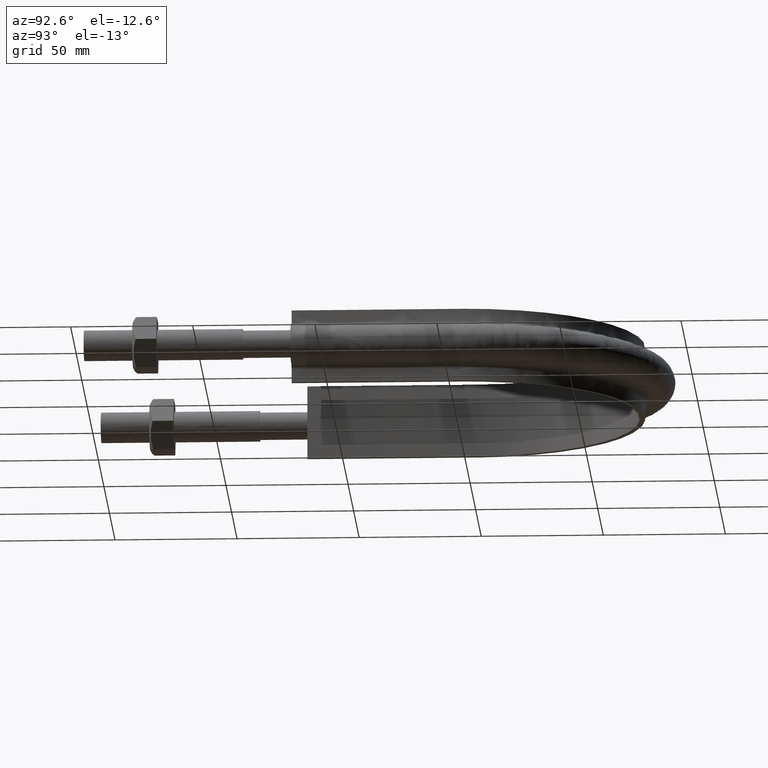
[diagram: clean part render]
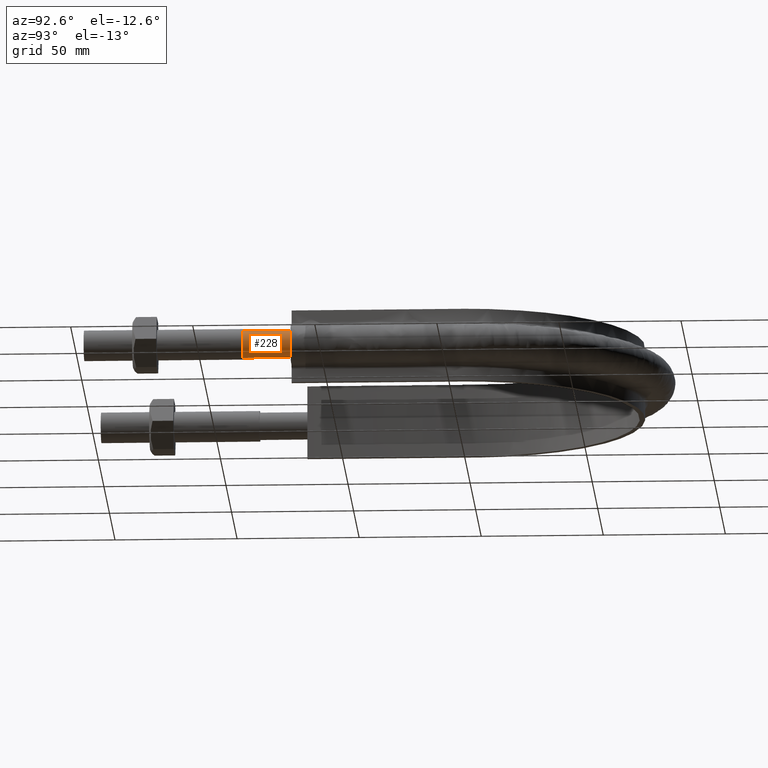
[diagram: same view with one face highlighted and labeled with its STEP entity id]
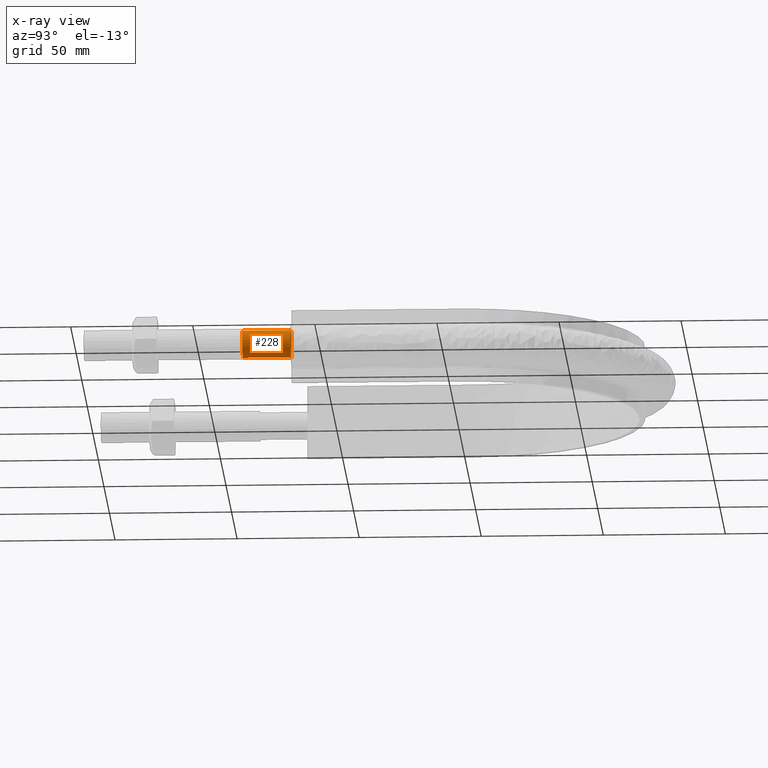
[diagram: x-ray of the same camera — body ghosted, the highlighted face saturated]
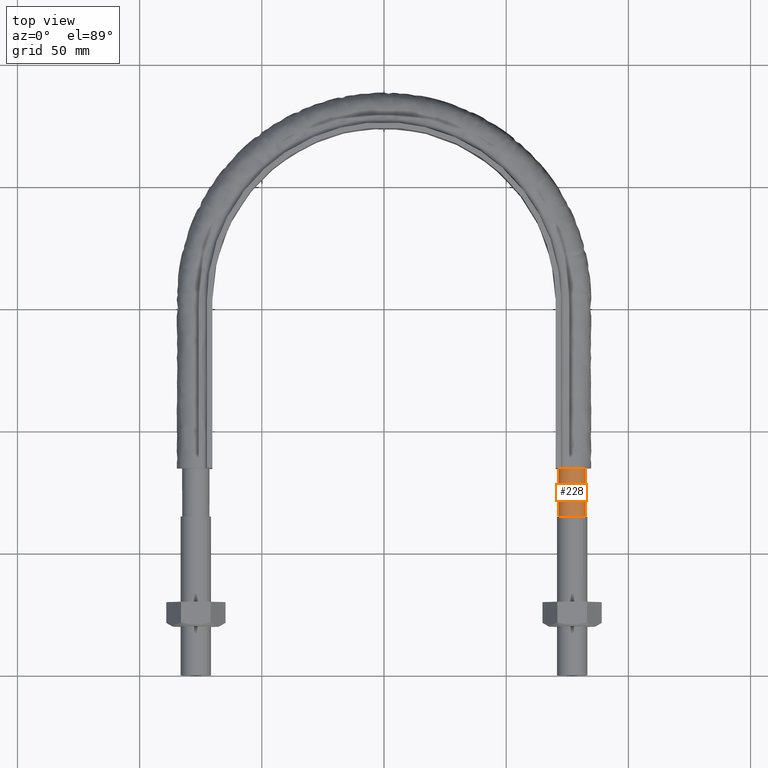
[diagram: same view with one face highlighted and labeled with its STEP entity id]
A machine part, auxiliary view. The second image highlights one B-rep face of the part: STEP entity #228.
The next image is the same camera in x-ray: the body ghosted, the highlighted face saturated — about 0% of this face is hidden behind the body in this view.
A second angle (top view) of the same face is appended — the face is thin or edge-on in the first view.
In plain terms, the highlighted cylindrical surface (bore or boss wall) has radius 5.6 mm, axis along (0, 1, -0).
Its self-contained STEP definition (entity closure, byte-faithful):
#228 = ADVANCED_FACE( '', ( #283, #284 ), #285, .T. );
#283 = FACE_OUTER_BOUND( '', #1231, .T. );
#284 = FACE_OUTER_BOUND( '', #1232, .T. );
#285 = CYLINDRICAL_SURFACE( '', #1233, 5.59999999999999 );
#1231 = EDGE_LOOP( '', ( #1395, #1396, #1397, #1398, #1399, #1400, #1401, #1402 ) );
#1232 = EDGE_LOOP( '', ( #1403 ) );
#1233 = AXIS2_PLACEMENT_3D( '', #1404, #1405, #1406 );
#1395 = ORIENTED_EDGE( '', *, *, #1625, .F. );
#1396 = ORIENTED_EDGE( '', *, *, #1624, .F. );
#1397 = ORIENTED_EDGE( '', *, *, #1623, .F. );
#1398 = ORIENTED_EDGE( '', *, *, #1622, .F. );
#1399 = ORIENTED_EDGE( '', *, *, #1629, .F. );
#1400 = ORIENTED_EDGE( '', *, *, #1628, .F. );
#1401 = ORIENTED_EDGE( '', *, *, #1627, .F. );
#1402 = ORIENTED_EDGE( '', *, *, #1626, .F. );
#1403 = ORIENTED_EDGE( '', *, *, #1630, .T. );
#1404 = CARTESIAN_POINT( '', ( 77.0000000000000, 84.7100000000000, -1.46064922852164E-014 ) );
#1405 = DIRECTION( '', ( 2.44921270764475E-016, 1.00000000000000, -3.06151588455594E-016 ) );
#1406 = DIRECTION( '', ( 1.00000000000000, -2.44921270764475E-016, 0.000000000000000 ) );
#1622 = EDGE_CURVE( '', #1723, #1724, #1725, .T. );
#1623 = EDGE_CURVE( '', #1724, #1726, #1727, .T. );
#1624 = EDGE_CURVE( '', #1726, #1728, #1729, .T. );
#1625 = EDGE_CURVE( '', #1728, #1730, #1731, .T. );
#1626 = EDGE_CURVE( '', #1730, #1732, #1733, .T. );
#1627 = EDGE_CURVE( '', #1732, #1734, #1735, .T. );
#1628 = EDGE_CURVE( '', #1734, #1736, #1737, .T. );
#1629 = EDGE_CURVE( '', #1736, #1723, #1738, .T. );
#1630 = EDGE_CURVE( '', #1739, #1739, #1740, .F. );
#1723 = VERTEX_POINT( '', #2041 );
#1724 = VERTEX_POINT( '', #2042 );
#1725 = B_SPLINE_CURVE_WITH_KNOTS( '', 3, ( #2043, #2044, #2045, #2046 ), .UNSPECIFIED., .F., .F., ( 4, 4 ), ( 0.000000000000000, 1.00000000000000 ), .UNSPECIFIED. );
#1726 = VERTEX_POINT( '', #2047 );
#1727 = B_SPLINE_CURVE_WITH_KNOTS( '', 3, ( #2048, #2049, #2050, #2051 ), .UNSPECIFIED., .F., .F., ( 4, 4 ), ( 0.000000000000000, 1.00000000000000 ), .UNSPECIFIED. );
#1728 = VERTEX_POINT( '', #2052 );
#1729 = B_SPLINE_CURVE_WITH_KNOTS( '', 3, ( #2053, #2054, #2055, #2056 ), .UNSPECIFIED., .F., .F., ( 4, 4 ), ( 0.000000000000000, 1.00000000000000 ), .UNSPECIFIED. );
#1730 = VERTEX_POINT( '', #2057 );
#1731 = B_SPLINE_CURVE_WITH_KNOTS( '', 3, ( #2058, #2059, #2060, #2061 ), .UNSPECIFIED., .F., .F., ( 4, 4 ), ( 0.000000000000000, 1.00000000000000 ), .UNSPECIFIED. );
#1732 = VERTEX_POINT( '', #2062 );
#1733 = B_SPLINE_CURVE_WITH_KNOTS( '', 3, ( #2063, #2064, #2065, #2066 ), .UNSPECIFIED., .F., .F., ( 4, 4 ), ( 0.000000000000000, 1.00000000000000 ), .UNSPECIFIED. );
#1734 = VERTEX_POINT( '', #2067 );
#1735 = B_SPLINE_CURVE_WITH_KNOTS( '', 3, ( #2068, #2069, #2070, #2071 ), .UNSPECIFIED., .F., .F., ( 4, 4 ), ( 0.000000000000000, 1.00000000000000 ), .UNSPECIFIED. );
#1736 = VERTEX_POINT( '', #2072 );
#1737 = B_SPLINE_CURVE_WITH_KNOTS( '', 3, ( #2073, #2074, #2075, #2076 ), .UNSPECIFIED., .F., .F., ( 4, 4 ), ( 0.000000000000000, 1.00000000000000 ), .UNSPECIFIED. );
#1738 = B_SPLINE_CURVE_WITH_KNOTS( '', 3, ( #2077, #2078, #2079, #2080 ), .UNSPECIFIED., .F., .F., ( 4, 4 ), ( 0.000000000000000, 1.00000000000000 ), .UNSPECIFIED. );
#1739 = VERTEX_POINT( '', #2081 );
#1740 = CIRCLE( '', #2082, 5.59999999999999 );
#2041 = CARTESIAN_POINT( '', ( 71.4000000000000, 84.7100000000000, -6.20949125533798E-014 ) );
#2042 = CARTESIAN_POINT( '', ( 73.0402020253557, 84.7100000000000, 3.95979797464497 ) );
#2043 = CARTESIAN_POINT( '', ( 71.4000000000000, 84.7100000000000, -1.08420217248550E-016 ) );
#2044 = CARTESIAN_POINT( '', ( 71.4000000000000, 84.7100000000000, 1.46274169979710 ) );
#2045 = CARTESIAN_POINT( '', ( 72.0058874503047, 84.7100000000000, 2.92548339959419 ) );
#2046 = CARTESIAN_POINT( '', ( 73.0402020253557, 84.7100000000000, 3.95979797464497 ) );
#2047 = CARTESIAN_POINT( '', ( 77.0000000000252, 84.7100000000000, 5.59999999999998 ) );
#2048 = CARTESIAN_POINT( '', ( 73.0402020253795, 84.7100000000000, 3.95979797466879 ) );
#2049 = CARTESIAN_POINT( '', ( 74.0745166004407, 84.7100000000000, 4.99411254971660 ) );
#2050 = CARTESIAN_POINT( '', ( 75.5372583002534, 84.7100000000000, 5.60000000001612 ) );
#2051 = CARTESIAN_POINT( '', ( 77.0000000000622, 84.7100000000000, 5.59999999999960 ) );
#2052 = CARTESIAN_POINT( '', ( 80.9597979746576, 84.7100000000000, 3.95979797463169 ) );
#2053 = CARTESIAN_POINT( '', ( 77.0000000000252, 84.7100000000000, 5.59999999999999 ) );
#2054 = CARTESIAN_POINT( '', ( 78.4627416998259, 84.7100000000000, 5.59999999999304 ) );
#2055 = CARTESIAN_POINT( '', ( 79.9254833996285, 84.7100000000000, 4.99411254967764 ) );
#2056 = CARTESIAN_POINT( '', ( 80.9597979746768, 84.7100000000000, 3.95979797461214 ) );
#2057 = CARTESIAN_POINT( '', ( 82.6000000000000, 84.7100000000000, -1.46064922852164E-014 ) );
#2058 = CARTESIAN_POINT( '', ( 80.9597979746576, 84.7100000000000, 3.95979797463173 ) );
#2059 = CARTESIAN_POINT( '', ( 81.9941125497079, 84.7100000000000, 2.92548339957432 ) );
#2060 = CARTESIAN_POINT( '', ( 82.6000000000100, 84.7100000000000, 1.46274169976691 ) );
#2061 = CARTESIAN_POINT( '', ( 82.5999999999998, 84.7100000000000, -3.79574263879876E-011 ) );
#2062 = CARTESIAN_POINT( '', ( 80.9597979746445, 84.7100000000000, -3.95979797464487 ) );
#2063 = CARTESIAN_POINT( '', ( 82.6000000000000, 84.7100000000000, -1.81346772843695E-011 ) );
#2064 = CARTESIAN_POINT( '', ( 82.5999999999950, 84.7100000000000, -1.46274169981350 ) );
#2065 = CARTESIAN_POINT( '', ( 81.9941125496862, 84.7100000000000, -2.92548339961012 ) );
#2066 = CARTESIAN_POINT( '', ( 80.9597979746304, 84.7100000000000, -3.95979797465860 ) );
#2067 = CARTESIAN_POINT( '', ( 76.9999999999999, 84.7100000000000, -5.60000000000001 ) );
#2068 = CARTESIAN_POINT( '', ( 80.9597979746445, 84.7100000000000, -3.95979797464487 ) );
#2069 = CARTESIAN_POINT( '', ( 79.9254833995937, 84.7100000000000, -4.99411254969557 ) );
#2070 = CARTESIAN_POINT( '', ( 78.4627416997966, 84.7100000000000, -5.60000000000009 ) );
#2071 = CARTESIAN_POINT( '', ( 76.9999999999996, 84.7100000000000, -5.59999999999999 ) );
#2072 = CARTESIAN_POINT( '', ( 73.0402020253626, 84.7100000000000, -3.95979797465190 ) );
#2073 = CARTESIAN_POINT( '', ( 77.0000000000000, 84.7100000000000, -5.59999999999999 ) );
#2074 = CARTESIAN_POINT( '', ( 75.5372583002065, 84.7100000000000, -5.59999999999999 ) );
#2075 = CARTESIAN_POINT( '', ( 74.0745166004129, 84.7100000000000, -4.99411254969824 ) );
#2076 = CARTESIAN_POINT( '', ( 73.0402020253626, 84.7100000000000, -3.95979797465188 ) );
#2077 = CARTESIAN_POINT( '', ( 73.0402020253626, 84.7100000000000, -3.95979797465189 ) );
#2078 = CARTESIAN_POINT( '', ( 72.0058874503074, 84.7100000000000, -2.92548339960072 ) );
#2079 = CARTESIAN_POINT( '', ( 71.4000000000007, 84.7100000000000, -1.46274169980207 ) );
#2080 = CARTESIAN_POINT( '', ( 71.3999999999999, 84.7100000000000, -3.69474416339610E-012 ) );
#2081 = CARTESIAN_POINT( '', ( 77.0000000000000, 65.0000000000000, -5.60000000000000 ) );
#2082 = AXIS2_PLACEMENT_3D( '', #2336, #2337, #2338 );
#2336 = CARTESIAN_POINT( '', ( 77.0000000000000, 65.0000000000000, -8.57224447675665E-015 ) );
#2337 = DIRECTION( '', ( -2.44921270764475E-016, -1.00000000000000, 3.06151588455594E-016 ) );
#2338 = DIRECTION( '', ( 0.000000000000000, -3.06151588455594E-016, -1.00000000000000 ) );